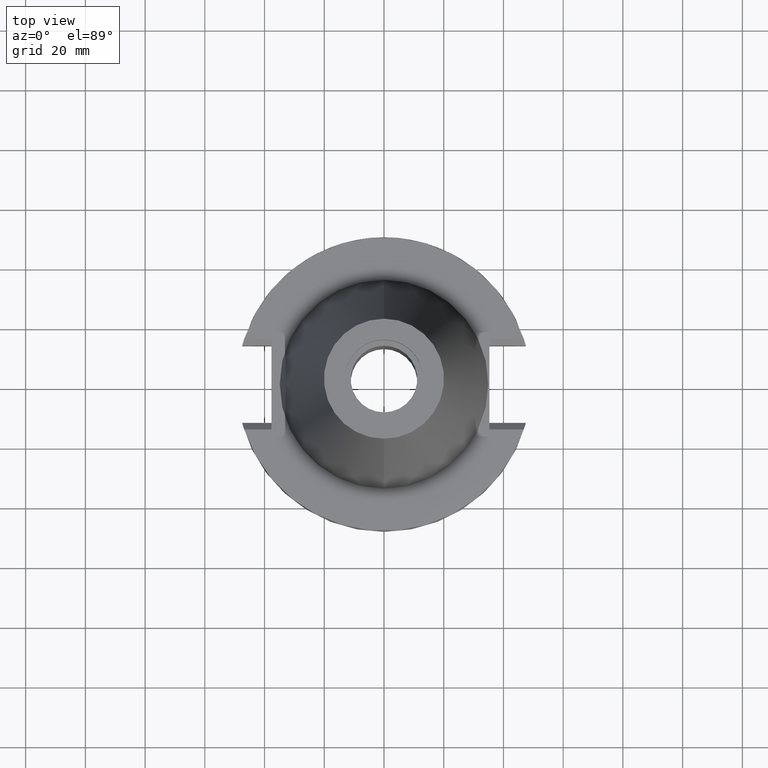
[diagram: clean part render]
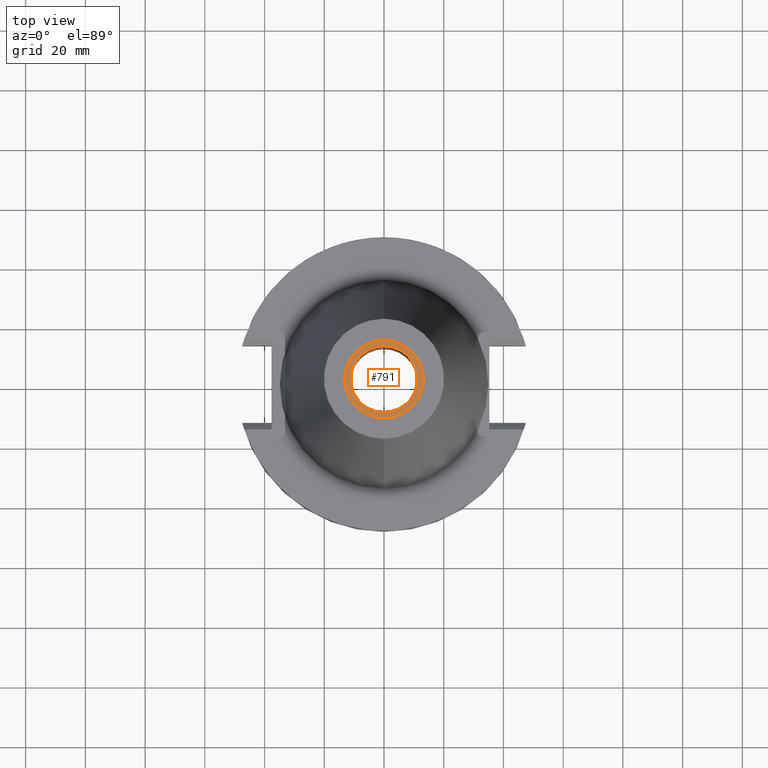
[diagram: same view with one face highlighted and labeled with its STEP entity id]
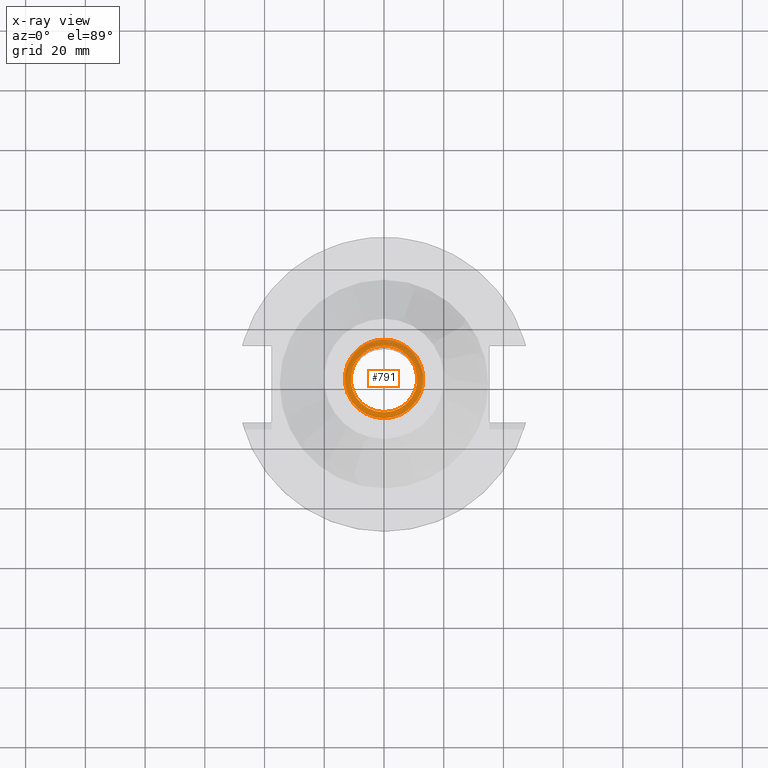
[diagram: x-ray of the same camera — body ghosted, the highlighted face saturated]
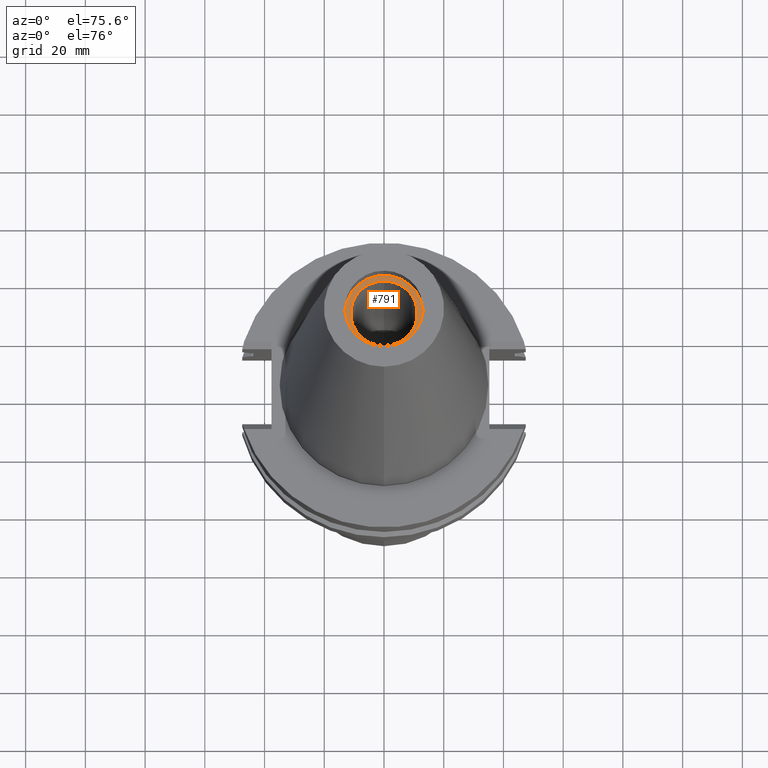
[diagram: same view with one face highlighted and labeled with its STEP entity id]
A machine part, top view. The second image highlights one B-rep face of the part: STEP entity #791.
The next image is the same camera in x-ray: the body ghosted, the highlighted face saturated — about 0% of this face is hidden behind the body in this view.
A second angle (auxiliary view) of the same face is appended — the face is thin or edge-on in the first view.
In plain terms, the highlighted planar face has unit normal (0, 0, -1).
Its self-contained STEP definition (entity closure, byte-faithful):
#21 = CARTESIAN_POINT ( 'NONE',  ( 0.0000000000000000000, -13.11500000000000021, 95.25000000000000000 ) ) ;
#73 = AXIS2_PLACEMENT_3D ( 'NONE', #651, #3051, #2314 ) ;
#88 = EDGE_CURVE ( 'NONE', #2883, #1598, #2257, .T. ) ;
#154 = CARTESIAN_POINT ( 'NONE',  ( 0.0000000000000000000, 2.586270342779000040E-14, 95.25000000000000000 ) ) ;
#206 = ORIENTED_EDGE ( 'NONE', *, *, #581, .F. ) ;
#348 = CARTESIAN_POINT ( 'NONE',  ( 0.0000000000000000000, 2.586270342779000040E-14, 95.25000000000000000 ) ) ;
#475 = EDGE_LOOP ( 'NONE', ( #2693, #2400 ) ) ;
#480 = DIRECTION ( 'NONE',  ( 0.0000000000000000000, 0.0000000000000000000, -1.000000000000000000 ) ) ;
#502 = CARTESIAN_POINT ( 'NONE',  ( 0.0000000000000000000, 13.11500000000000021, 95.25000000000000000 ) ) ;
#581 = EDGE_CURVE ( 'NONE', #1232, #1242, #3140, .T. ) ;
#651 = CARTESIAN_POINT ( 'NONE',  ( 0.0000000000000000000, 2.586270342779000040E-14, 95.25000000000000000 ) ) ;
#791 = ADVANCED_FACE ( 'NONE', ( #1050, #1489 ), #2028, .F. ) ;
#946 = CARTESIAN_POINT ( 'NONE',  ( 0.0000000000000000000, 2.586270342779000040E-14, 95.25000000000000000 ) ) ;
#1004 = CARTESIAN_POINT ( 'NONE',  ( 0.0000000000000000000, -11.15000000000000036, 95.25000000000000000 ) ) ;
#1050 = FACE_OUTER_BOUND ( 'NONE', #1885, .T. ) ;
#1116 = AXIS2_PLACEMENT_3D ( 'NONE', #154, #1343, #2891 ) ;
#1232 = VERTEX_POINT ( 'NONE', #21 ) ;
#1242 = VERTEX_POINT ( 'NONE', #502 ) ;
#1343 = DIRECTION ( 'NONE',  ( 0.0000000000000000000, 0.0000000000000000000, -1.000000000000000000 ) ) ;
#1378 = AXIS2_PLACEMENT_3D ( 'NONE', #2542, #480, #2486 ) ;
#1403 = ORIENTED_EDGE ( 'NONE', *, *, #2969, .F. ) ;
#1489 = FACE_BOUND ( 'NONE', #475, .T. ) ;
#1598 = VERTEX_POINT ( 'NONE', #1909 ) ;
#1617 = DIRECTION ( 'NONE',  ( 0.0000000000000000000, 0.0000000000000000000, 1.000000000000000000 ) ) ;
#1761 = AXIS2_PLACEMENT_3D ( 'NONE', #348, #1617, #2819 ) ;
#1885 = EDGE_LOOP ( 'NONE', ( #1403, #206 ) ) ;
#1909 = CARTESIAN_POINT ( 'NONE',  ( 0.0000000000000000000, 11.15000000000000036, 95.25000000000000000 ) ) ;
#2028 = PLANE ( 'NONE',  #1378 ) ;
#2152 = AXIS2_PLACEMENT_3D ( 'NONE', #946, #2449, #2676 ) ;
#2241 = CIRCLE ( 'NONE', #73, 13.11500000000000021 ) ;
#2257 = CIRCLE ( 'NONE', #2152, 11.15000000000000036 ) ;
#2314 = DIRECTION ( 'NONE',  ( 0.0000000000000000000, 1.000000000000000000, 0.0000000000000000000 ) ) ;
#2400 = ORIENTED_EDGE ( 'NONE', *, *, #88, .F. ) ;
#2449 = DIRECTION ( 'NONE',  ( 0.0000000000000000000, 0.0000000000000000000, 1.000000000000000000 ) ) ;
#2486 = DIRECTION ( 'NONE',  ( 0.0000000000000000000, -1.000000000000000000, 0.0000000000000000000 ) ) ;
#2542 = CARTESIAN_POINT ( 'NONE',  ( 0.0000000000000000000, 2.391122875334999611E-14, 95.25000000000000000 ) ) ;
#2676 = DIRECTION ( 'NONE',  ( 0.0000000000000000000, -1.000000000000000000, 0.0000000000000000000 ) ) ;
#2693 = ORIENTED_EDGE ( 'NONE', *, *, #2959, .F. ) ;
#2749 = CIRCLE ( 'NONE', #1761, 11.15000000000000036 ) ;
#2819 = DIRECTION ( 'NONE',  ( 0.0000000000000000000, 1.000000000000000000, 0.0000000000000000000 ) ) ;
#2883 = VERTEX_POINT ( 'NONE', #1004 ) ;
#2891 = DIRECTION ( 'NONE',  ( 0.0000000000000000000, -1.000000000000000000, 0.0000000000000000000 ) ) ;
#2959 = EDGE_CURVE ( 'NONE', #1598, #2883, #2749, .T. ) ;
#2969 = EDGE_CURVE ( 'NONE', #1242, #1232, #2241, .T. ) ;
#3051 = DIRECTION ( 'NONE',  ( 0.0000000000000000000, 0.0000000000000000000, -1.000000000000000000 ) ) ;
#3140 = CIRCLE ( 'NONE', #1116, 13.11500000000000021 ) ;